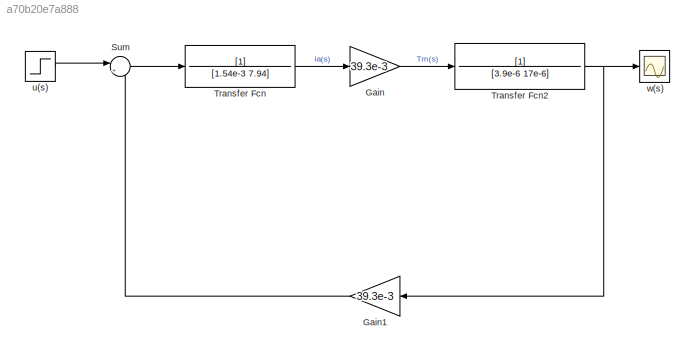
MODEL slx_a70b20e7a888
KIND model
CONFIG AbsTol = auto
CONFIG EnableMultiTasking = off
CONFIG FixedStep = auto
CONFIG MaxStep = auto
CONFIG MinStep = auto
CONFIG RelTol = 1e-3
CONFIG SampleTimeConstraint = Unconstrained
CONFIG SolverName = VariableStepAuto
CONFIG StartTime = 0.0
CONFIG StopTime = 10.0
BLOCK [Gain] Gain
  Gain = 39.3e-3
BLOCK [Gain] Gain1
  Gain = 39.3e-3
BLOCK [Sum] Sum
  Inputs = |+-
  Ports = [2, 1]
BLOCK [TransferFcn] Transfer Fcn
  Denominator = [1.54e-3 7.94]
BLOCK [TransferFcn] Transfer Fcn2
  Denominator = [3.9e-6 17e-6]
BLOCK [Step] u(s)
  SampleTime = 0
BLOCK [Scope] w(s)
  Floating = off
  NumInputPorts = 1
  Ports = [1]
  ScopeSpecificationString = Simulink.scopes.TimeScopeBlockCfg('CurrentConfiguration', extmgr.ConfigurationSet(extmgr.Configuration('Core','General UI',true),extmgr.Configuration('Core','Source UI',true),extmgr.Configuration('Sources','WiredSimulink',true),extmgr.Configuration('Visuals','Time Domain',true,'SerializedDisplays',{struct('MinYLimReal','-2.9252','MaxYLimReal','26.32678','YLabelReal','','MinYLimMag','0.00000','MaxY...<+1335ch>
LINE Gain1:1 -> Sum:2
LINE Gain:1 -> Transfer Fcn2:1
LINE Sum:1 -> Transfer Fcn:1
NET Transfer Fcn2:1 -> Gain1:1, w(s):1
LINE Transfer Fcn:1 -> Gain:1
LINE u(s):1 -> Sum:1
note: NET lines group one-source signal fan-out (src -> all destinations, sorted); 1:1 wires keep LINE
